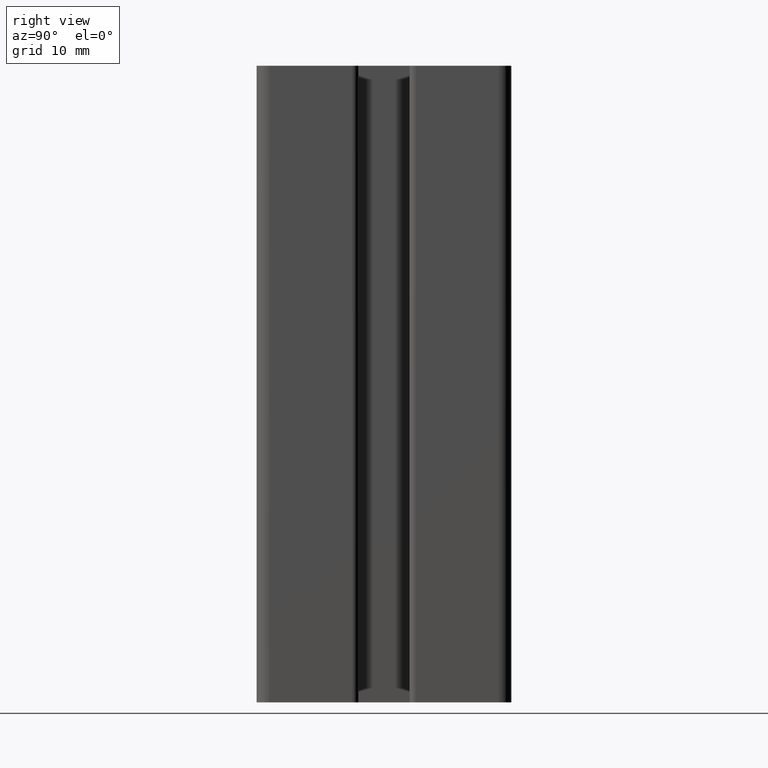
[diagram: clean part render]
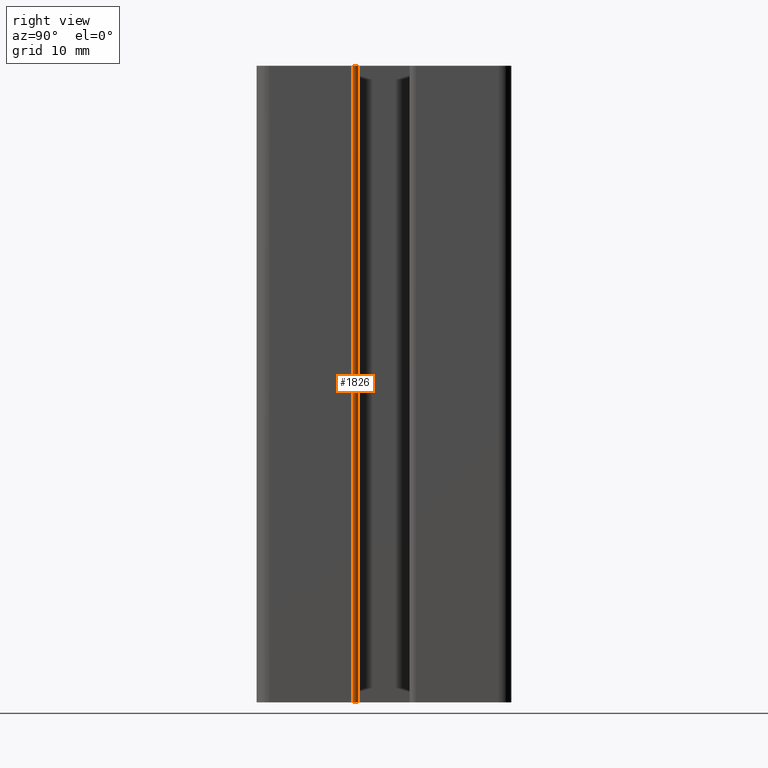
[diagram: same view with one face highlighted and labeled with its STEP entity id]
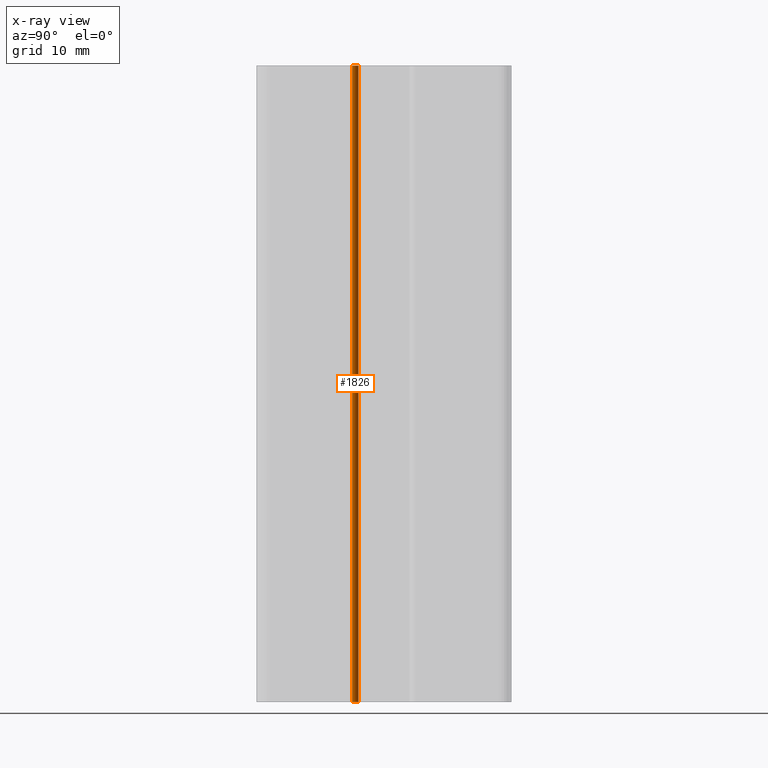
[diagram: x-ray of the same camera — body ghosted, the highlighted face saturated]
A machine part, right view. The second image highlights one B-rep face of the part: STEP entity #1826.
The next image is the same camera in x-ray: the body ghosted, the highlighted face saturated — about 0% of this face is hidden behind the body in this view.
In plain terms, the highlighted cylindrical surface (edge-blend (fillet) strip) has radius 1 mm, axis along (0, 0, 1).
Its self-contained STEP definition (entity closure, byte-faithful):
#56=CIRCLE('',#1956,1.);
#57=CIRCLE('',#1957,1.);
#134=CYLINDRICAL_SURFACE('',#1955,1.);
#191=FACE_OUTER_BOUND('',#287,.T.);
#287=EDGE_LOOP('',(#1298,#1299,#1300,#1301));
#410=LINE('',#2814,#594);
#411=LINE('',#2817,#595);
#594=VECTOR('',#2254,100.);
#595=VECTOR('',#2257,100.);
#786=VERTEX_POINT('',#2810);
#787=VERTEX_POINT('',#2811);
#788=VERTEX_POINT('',#2813);
#789=VERTEX_POINT('',#2815);
#996=EDGE_CURVE('',#786,#787,#56,.T.);
#997=EDGE_CURVE('',#786,#788,#410,.T.);
#998=EDGE_CURVE('',#789,#788,#57,.T.);
#999=EDGE_CURVE('',#789,#787,#411,.T.);
#1298=ORIENTED_EDGE('',*,*,#996,.F.);
#1299=ORIENTED_EDGE('',*,*,#997,.T.);
#1300=ORIENTED_EDGE('',*,*,#998,.F.);
#1301=ORIENTED_EDGE('',*,*,#999,.T.);
#1826=ADVANCED_FACE('',(#191),#134,.T.);
#1955=AXIS2_PLACEMENT_3D('',#2809,#2250,#2251);
#1956=AXIS2_PLACEMENT_3D('',#2812,#2252,#2253);
#1957=AXIS2_PLACEMENT_3D('',#2816,#2255,#2256);
#2250=DIRECTION('center_axis',(0.,0.,1.));
#2251=DIRECTION('ref_axis',(-1.,3.27515792264426E-14,0.));
#2252=DIRECTION('center_axis',(0.,0.,1.));
#2253=DIRECTION('ref_axis',(-1.,3.27515792264426E-14,0.));
#2254=DIRECTION('',(0.,0.,-1.));
#2255=DIRECTION('center_axis',(0.,0.,-1.));
#2256=DIRECTION('ref_axis',(-1.,3.27515792264426E-14,0.));
#2257=DIRECTION('',(0.,0.,1.));
#2809=CARTESIAN_POINT('Origin',(18.9999997578296,-4.99999601545472,0.));
#2810=CARTESIAN_POINT('',(19.9999997578296,-4.99999601545476,100.));
#2811=CARTESIAN_POINT('',(18.9999997578296,-3.99999601545472,100.));
#2812=CARTESIAN_POINT('Origin',(18.9999997578296,-4.99999601545472,100.));
#2813=CARTESIAN_POINT('',(19.9999997578296,-4.99999601545476,0.));
#2814=CARTESIAN_POINT('',(20.,-4.99999601545472,0.));
#2815=CARTESIAN_POINT('',(18.9999997578296,-3.99999601545472,0.));
#2816=CARTESIAN_POINT('Origin',(18.9999997578296,-4.99999601545472,0.));
#2817=CARTESIAN_POINT('',(18.9999997578296,-3.99999601545472,0.));